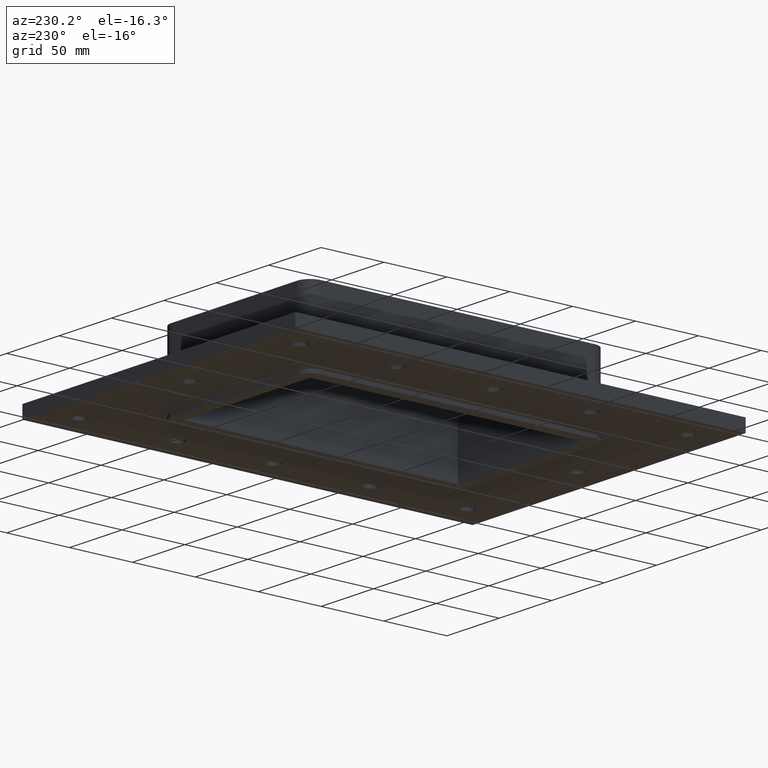
[diagram: clean part render]
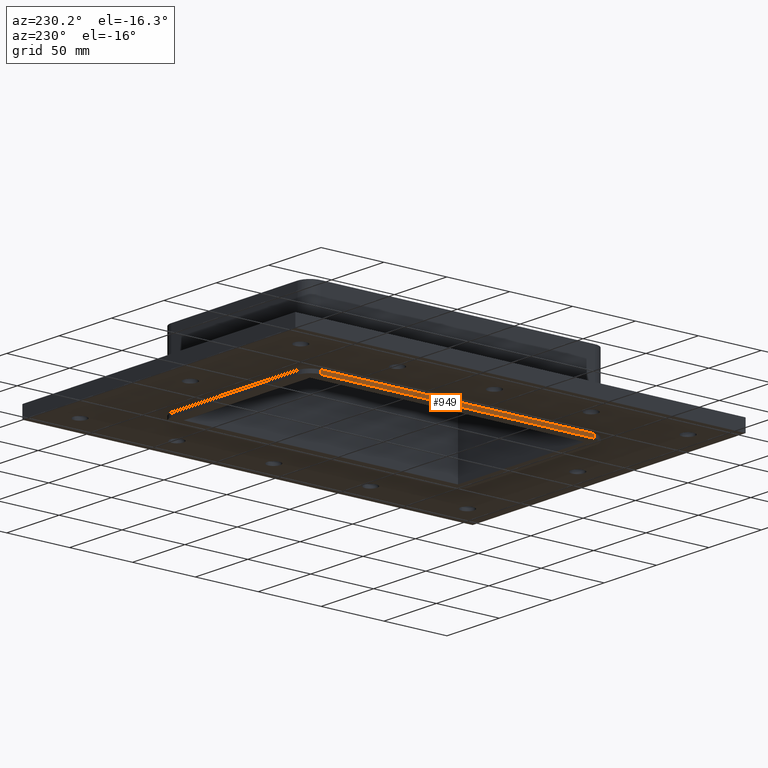
[diagram: same view with one face highlighted and labeled with its STEP entity id]
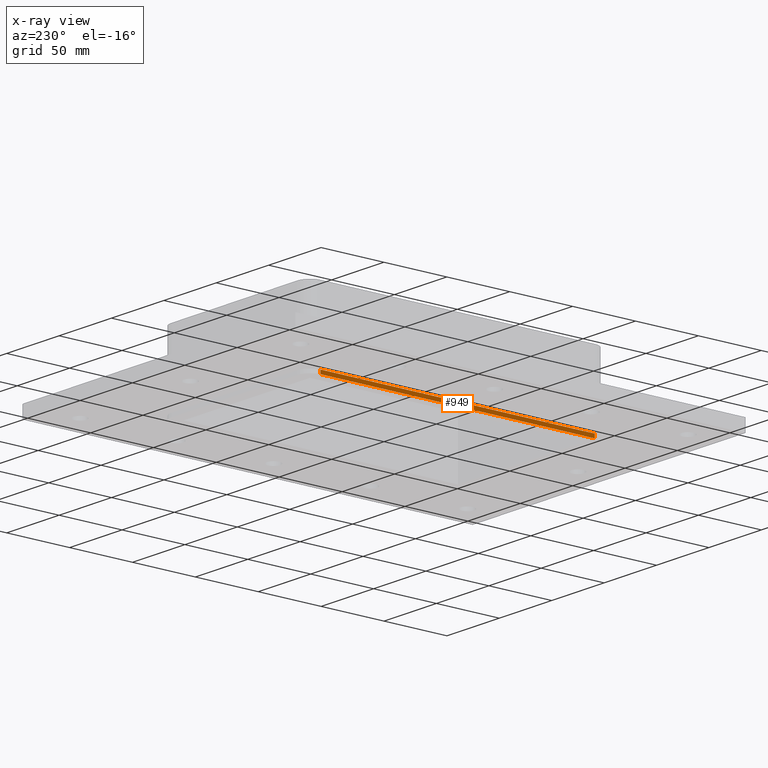
[diagram: x-ray of the same camera — body ghosted, the highlighted face saturated]
A machine part, auxiliary view. The second image highlights one B-rep face of the part: STEP entity #949.
The next image is the same camera in x-ray: the body ghosted, the highlighted face saturated — about 0% of this face is hidden behind the body in this view.
In plain terms, the highlighted planar face has unit normal (-1, 0, 0).
Its self-contained STEP definition (entity closure, byte-faithful):
#712=CARTESIAN_POINT('',(-70.250000000000028,109.00000000000006,-27.0));
#713=VERTEX_POINT('',#712);
#721=CARTESIAN_POINT('',(-70.249999999999972,-108.99999999999999,-27.0));
#722=VERTEX_POINT('',#721);
#723=CARTESIAN_POINT('',(-70.249999999999957,-109.0,-27.0));
#724=DIRECTION('',(0.0,1.0,0.0));
#725=VECTOR('',#724,218.00000000000006);
#726=LINE('',#723,#725);
#727=EDGE_CURVE('',#722,#713,#726,.T.);
#882=CARTESIAN_POINT('',(-70.249999999999957,-109.00000000000006,-30.0));
#883=VERTEX_POINT('',#882);
#884=CARTESIAN_POINT('',(-70.249999999999957,-109.00000000000006,-27.0));
#885=DIRECTION('',(0.0,0.0,-1.0));
#886=VECTOR('',#885,3.0);
#887=LINE('',#884,#886);
#888=EDGE_CURVE('',#722,#883,#887,.T.);
#926=CARTESIAN_POINT('',(-70.250000000000028,118.99999999999991,0.0));
#927=DIRECTION('',(-1.0,0.0,0.0));
#928=DIRECTION('',(0.0,-1.0,0.0));
#929=AXIS2_PLACEMENT_3D('',#926,#927,#928);
#930=PLANE('',#929);
#931=ORIENTED_EDGE('',*,*,#727,.T.);
#932=CARTESIAN_POINT('',(-70.250000000000028,108.99999999999991,-30.0));
#933=VERTEX_POINT('',#932);
#934=CARTESIAN_POINT('',(-70.250000000000028,108.99999999999991,-30.0));
#935=DIRECTION('',(0.0,0.0,1.0));
#936=VECTOR('',#935,3.0);
#937=LINE('',#934,#936);
#938=EDGE_CURVE('',#933,#713,#937,.T.);
#939=ORIENTED_EDGE('',*,*,#938,.F.);
#940=CARTESIAN_POINT('',(-70.249999999999972,-109.00000000000006,-30.0));
#941=DIRECTION('',(0.0,1.0,0.0));
#942=VECTOR('',#941,217.99999999999997);
#943=LINE('',#940,#942);
#944=EDGE_CURVE('',#883,#933,#943,.T.);
#945=ORIENTED_EDGE('',*,*,#944,.F.);
#946=ORIENTED_EDGE('',*,*,#888,.F.);
#947=EDGE_LOOP('',(#931,#939,#945,#946));
#948=FACE_OUTER_BOUND('',#947,.T.);
#949=ADVANCED_FACE('',(#948),#930,.T.);